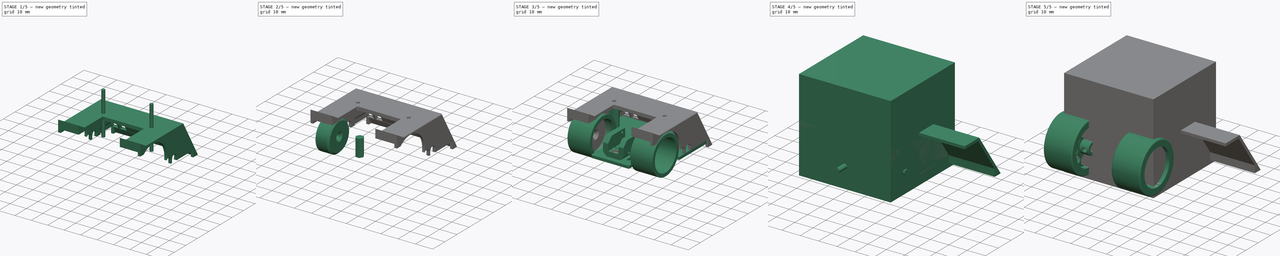
[diagram: build sequence overview — one tinted view per stage of 5, left to right]
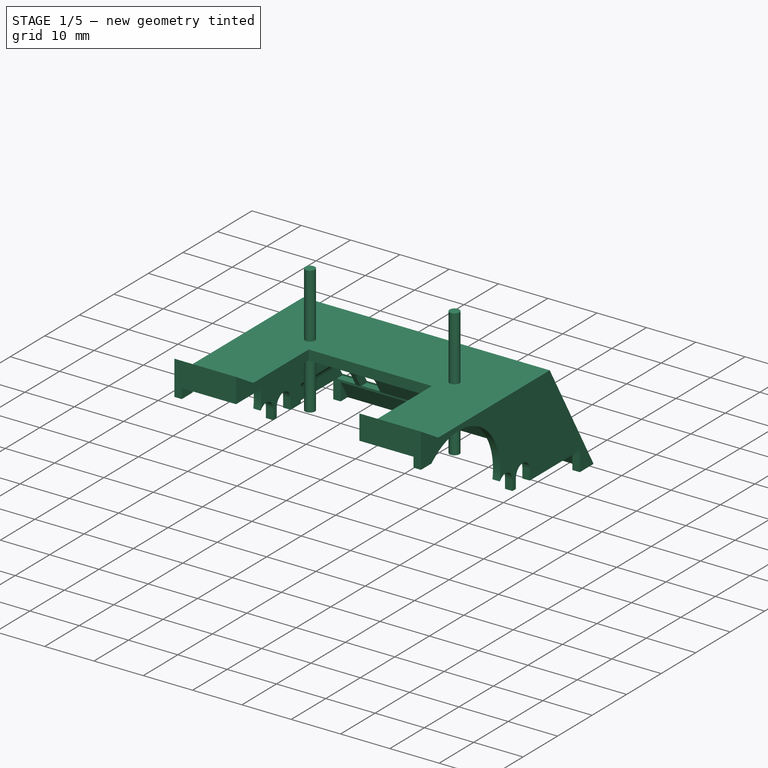
[diagram: stage 1 of 5 — iso view after this stage's code; geometry added in this stage tinted green]
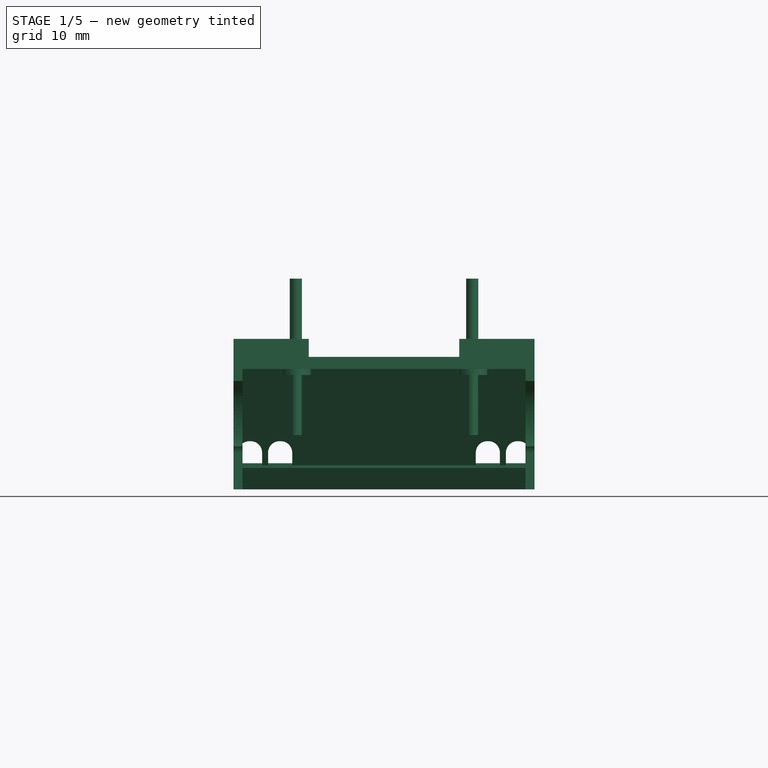
[diagram: stage 1 of 5 — front view after this stage's code; geometry added in this stage tinted green]
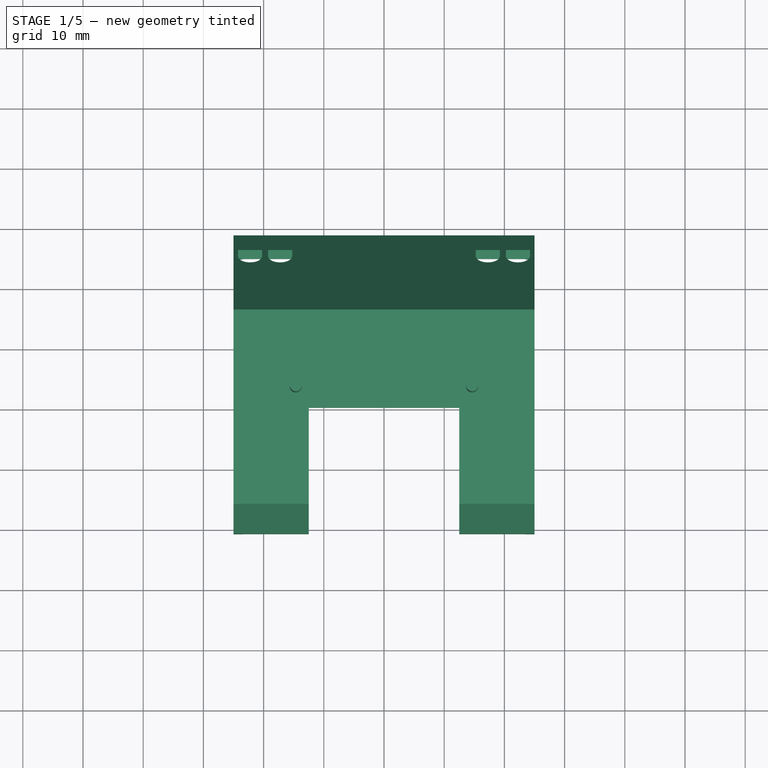
[diagram: stage 1 of 5 — top view after this stage's code; geometry added in this stage tinted green]
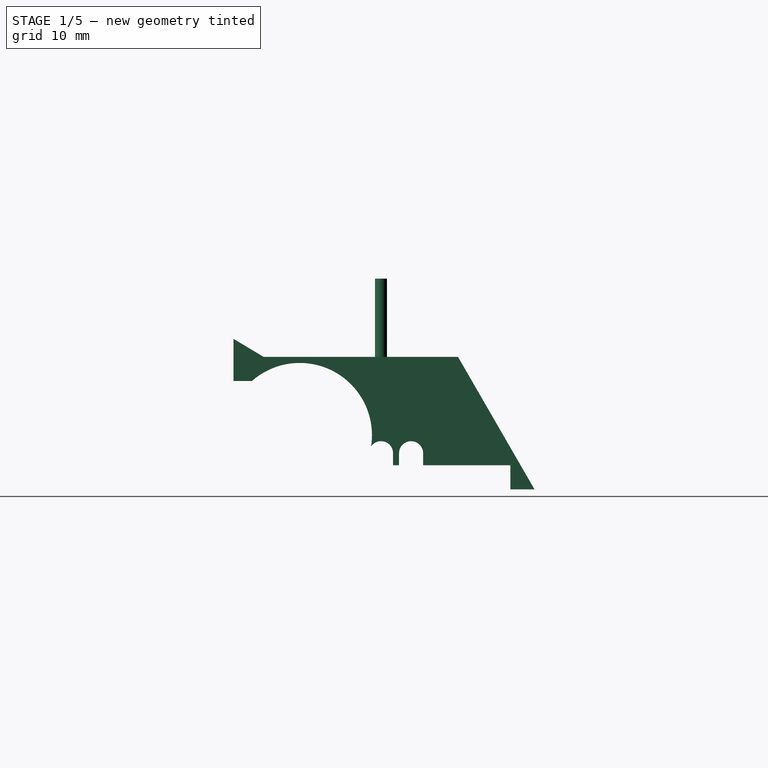
[diagram: stage 1 of 5 — right view after this stage's code; geometry added in this stage tinted green]
FCSTD DOCUMENT  (FreeCAD 0.18.3R)
Label: micropanda
License: All rights reserved
LicenseURL: http://en.wikipedia.org/wiki/All_rights_reserved
objects: Part::Feature×59, App::Part×28, Part::Cylinder×24, Part::Cut×19, Part::MultiFuse×14, Part::Fillet×8, Part::FeaturePython×7, Part::Box×7, PartDesign::Body×7, Sketcher::SketchObject×5, PartDesign::Pad×5, Part::Chamfer×4, Part::Prism×4, Part::Mirroring×4
note: 172 computed .brp shape members not serialized (recipe doc carries the construction recipe); baked Part::Feature solids carry a one-line shape summary decoded from their .brp

FEATURE [Sketcher::SketchObject] Sketch003
  MapMode = 5
  Placement = pos=(0,0,0) rot=(0.57735,0.57735,0.57735;2.0944rad)
  Support = -> [YZ_Plane035]
  sketch-geometry (17):
    g0: LineSegment StartX=35 StartY=-5 StartZ=0 EndX=35 EndY=-9 EndZ=0
    g1: LineSegment StartX=35 StartY=-9 StartZ=0 EndX=39 EndY=-9 EndZ=0
    g2: LineSegment StartX=39 StartY=-9 StartZ=0 EndX=26.8756 EndY=12 EndZ=0
    g3: LineSegment StartX=26.8756 StartY=12 StartZ=0 EndX=-6 EndY=12 EndZ=0
    g4: LineSegment StartX=-11 StartY=16 StartZ=0 EndX=-11 EndY=9 EndZ=0
    g5: LineSegment StartX=20.5 StartY=-5 StartZ=0 EndX=35 EndY=-5 EndZ=0
    g6: ArcOfCircle CenterX=0 CenterY=0 CenterZ=0 NormalX=0 NormalY=0 NormalZ=1 AngleXU=0 Radius=12 StartAngle=6.12728 EndAngle=8.57672
    g7: LineSegment StartX=-7.93725 StartY=9 StartZ=0 EndX=-11 EndY=9 EndZ=0
    g8: ArcOfCircle CenterX=18.5 CenterY=-3 CenterZ=0 NormalX=0 NormalY=0 NormalZ=1 AngleXU=0 Radius=2 StartAngle=0 EndAngle=3.14159
    g9: LineSegment StartX=16.5 StartY=-3 StartZ=0 EndX=16.5 EndY=-5 EndZ=0
    g10: LineSegment StartX=16.5 StartY=-5 StartZ=0 EndX=15.5 EndY=-5 EndZ=0
    g11: LineSegment StartX=15.5 StartY=-5 StartZ=0 EndX=15.5 EndY=-3 EndZ=0
    g12: ArcOfCircle CenterX=13.5 CenterY=-3 CenterZ=0 NormalX=0 NormalY=0 NormalZ=1 AngleXU=0 Radius=2 StartAngle=0 EndAngle=2.53706
    g13: LineSegment StartX=20.5 StartY=-3 StartZ=0 EndX=20.5 EndY=-5 EndZ=0
    g14: LineSegment [constr] StartX=18.5 StartY=-3 StartZ=0 EndX=13.5 EndY=-3 EndZ=0
    g15: LineSegment [constr] StartX=20.5 StartY=-5 StartZ=0 EndX=16.5 EndY=-5 EndZ=0
    g16: LineSegment StartX=-11 StartY=16 StartZ=0 EndX=-6 EndY=12 EndZ=0
  constraints (48):
    c: Coincident(g0,g1)
    c: Coincident(g1,g2)
    c: Coincident(g2,g3)
    c: Coincident(g5,g0)
    c: Vertical(g4)
    c: Horizontal(g3)
    c: Horizontal(g5)
    c: DistanceX(g3,g-1) = 6
    c: Angle(g2,g1) = 1.0472
    c: Horizontal(g1)
    c: DistanceY(g0,g-1) = 9
    c: DistanceY(g-1,g2) = 12
    c: Distance(g1) = 4
    c: Vertical(g0)
    c: DistanceX(g-2,g1) = 39
    c: Distance(g0) = 4
    c: Coincident(g6,g-1)
    c: Coincident(g4,g7)
    c: Horizontal(g7)
    c: Coincident(g7,g6)
    c: Coincident(g9,g10)
    c: Coincident(g10,g11)
    c: Vertical(g9)
    c: Vertical(g11)
    c: Tangent(g11,g12) = -1.5708
    c: DistanceY(g-1,g12) = -3
    c: DistanceX(g-2,g12) = 13.5
    c: Tangent(g8,g9) = -1.5708
    c: Equal(g8,g12)
    c: Vertical(g13)
    c: Coincident(g5,g13)
    c: Tangent(g8,g13) = 1.5708
    c: Coincident(g12,g14)
    c: Coincident(g8,g14)
    c: Horizontal(g14)
    c: Distance(g14) = 5
    c: Distance(g10) = 1
    c: Coincident(g9,g15)
    c: Coincident(g5,g15)
    c: Horizontal(g15)
    c: Radius(g6) = 12
    c: Coincident(g6,g12)
    c: Horizontal(g10)
    c: Coincident(g16,g4)
    c: Coincident(g16,g3)
    c: Distance(g4) = 7
    c: DistanceX(g-2,g4) = -11
    c: DistanceY(g-1,g4) = 16
FEATURE [PartDesign::Pad] Pad003
  Length = 50
  Length2 = 100
  Placement = pos=(0,0,0) rot=(0.57735,0.57735,0.57735;2.0944rad)
  Profile = -> Sketch003
  Refine = true
  Type = 0
FEATURE [PartDesign::Body] Body003
  Group = -> [Sketch003,Pad003]
  Origin = -> Origin035
  Placement = pos=(-25,0,0) rot=(0,0,1;0rad)
  Tip = -> Pad003
FEATURE [Sketcher::SketchObject] Sketch004
  MapMode = 5
  Placement = pos=(0,0,0) rot=(0.57735,0.57735,0.57735;2.0944rad)
  Support = -> [YZ_Plane036]
  sketch-geometry (4):
    g0: LineSegment StartX=-14.2209 StartY=11 StartZ=0 EndX=25.5 EndY=11 EndZ=0
    g1: LineSegment StartX=25.5 StartY=11 StartZ=0 EndX=38.7791 EndY=-12 EndZ=0
    g2: LineSegment StartX=38.7791 StartY=-12 StartZ=0 EndX=-14.2209 EndY=-12 EndZ=0
    g3: LineSegment StartX=-14.2209 StartY=-12 StartZ=0 EndX=-14.2209 EndY=11 EndZ=0
  constraints (12):
    c: Coincident(g0,g1)
    c: Coincident(g1,g2)
    c: Coincident(g2,g3)
    c: Coincident(g3,g0)
    c: Vertical(g3)
    c: Horizontal(g2)
    c: Angle(g0,g1) = 2.0944
    c: Horizontal(g0)
    c: DistanceX(g-2,g0) = 25.5
    c: DistanceY(g-1,g0) = 11
    c: Distance(g3) = 23
    c: Distance(g2) = 53
FEATURE [PartDesign::Pad] Pad004
  Length = 47
  Length2 = 100
  Placement = pos=(0,0,0) rot=(0.57735,0.57735,0.57735;2.0944rad)
  Profile = -> Sketch004
  Refine = true
  Type = 0
FEATURE [PartDesign::Body] Body004
  Group = -> [Sketch004,Pad004]
  Origin = -> Origin036
  Placement = pos=(-23.5,0,0) rot=(0,0,1;0rad)
  Tip = -> Pad004
FEATURE [App::Part] Part001
  Group = -> [Body003,Body004]
  Origin = -> Origin034
FEATURE [Part::Cut] Cut040
  Base = -> Body003
  Refine = true
  Tool = -> Body004
FEATURE [Part::Box] Box006  label="Cube006"
  AttacherType = Attacher::AttachEngine3D
  Height = 50
  Length = 25
  Placement = pos=(-12.5,-12,0) rot=(0,0,1;0rad)
  Width = 22
FEATURE [Part::Cut] Cut041
  Base = -> Cut040
  Refine = true
  Tool = -> Box006
FEATURE [PartDesign::Body] Body005
  Origin = -> Origin037
FEATURE [PartDesign::Body] Body006
  Origin = -> Origin038
  Placement = pos=(0,40.5,0) rot=(0,0,1;0rad)
FEATURE [Part::Box] Box007  label="Cube007"
  AttacherType = Attacher::AttachEngine3D
  Height = 4
  Length = 4
  Placement = pos=(0,49,0) rot=(0,0,1;0rad)
  Width = 13
FEATURE [Part::Fillet] Fillet025
  Base = -> Box007
  Edges = 2 edges r=1.9: [Edge2,Edge6]
  Placement = pos=(20.25,0,-5) rot=(0,0,1;0rad)
FEATURE [Part::Fillet] Fillet026
  Base = -> Box007
  Edges = 2 edges r=1.9: [Edge2,Edge6]
  Placement = pos=(15.25,0,-5) rot=(0,0,1;0rad)
FEATURE [Part::MultiFuse] Fusion041
  Refine = true
  Shapes = -> [Fillet025,Fillet026]
FEATURE [Part::Mirroring] Part__Mirroring003  label="Fusion041 (Mirror #4)"
  Base = (0,0,0)
  Normal = (1,0,0)
  Source = -> Fusion041
FEATURE [Part::MultiFuse] Fusion042
  Placement = pos=(0,-25.5,0) rot=(0,0,1;0rad)
  Refine = true
  Shapes = -> [Fusion041,Part__Mirroring003]
FEATURE [Part::Cut] Cut042
  Base = -> Cut041
  Refine = true
  Tool = -> Fusion042
FEATURE [Part::Cylinder] Cylinder056
  Angle = 360
  AttacherType = Attacher::AttachEngine3D
  Height = 26
  Placement = pos=(14.65,13.5,0) rot=(0,0,1;0rad)
  Radius = 1
FEATURE [Part::Cylinder] Cylinder057
  Angle = 360
  AttacherType = Attacher::AttachEngine3D
  Height = 26
  Placement = pos=(-14.65,13.5,0) rot=(0,0,1;0rad)
  Radius = 1
FEATURE [Part::MultiFuse] Fusion043
  Refine = true
  Shapes = -> [Cylinder057,Cylinder056]
FEATURE [Part::Cylinder] Cylinder058
  Angle = 360
  AttacherType = Attacher::AttachEngine3D
  Height = 2
  Placement = pos=(-14.65,13.5,0) rot=(0,0,1;0rad)
  Radius = 2.5
FEATURE [Part::Cylinder] Cylinder059
  Angle = 360
  AttacherType = Attacher::AttachEngine3D
  Height = 2
  Placement = pos=(14.65,13.5,0) rot=(0,0,1;0rad)
  Radius = 2.5
FEATURE [Part::MultiFuse] Fusion044
  Placement = pos=(0,0,10) rot=(0,0,1;0rad)
  Refine = true
  Shapes = -> [Cylinder058,Cylinder059]
FEATURE [Part::MultiFuse] Fusion045
  Refine = true
  Shapes = -> [Fusion044,Cut042]
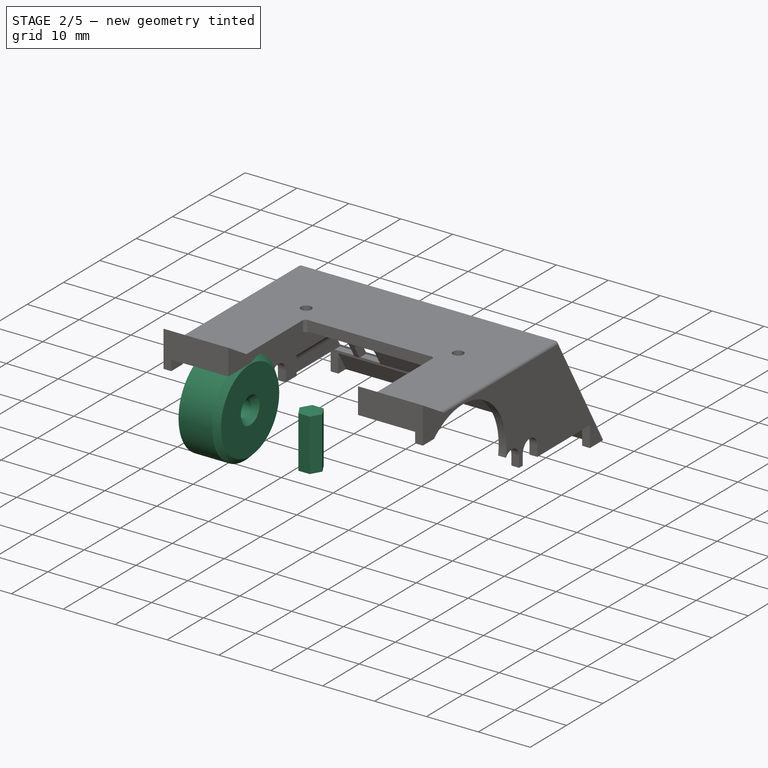
[diagram: stage 2 of 5 — iso view after this stage's code; geometry added in this stage tinted green]
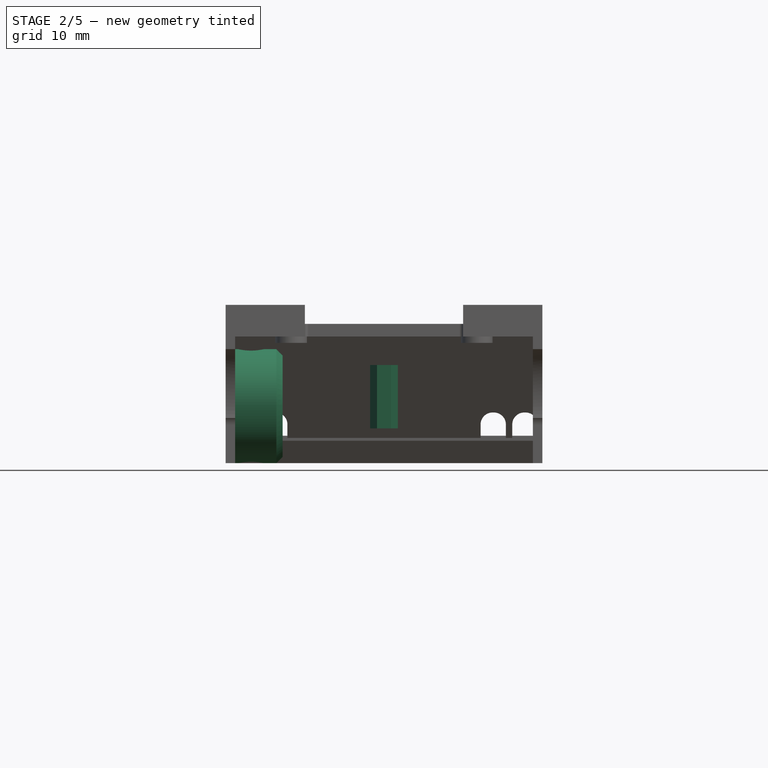
[diagram: stage 2 of 5 — front view after this stage's code; geometry added in this stage tinted green]
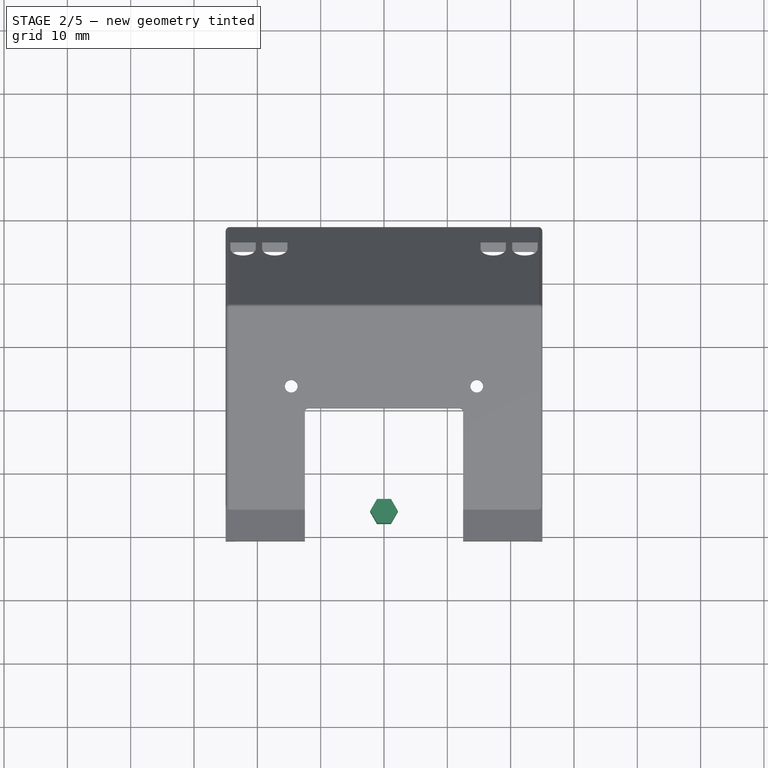
[diagram: stage 2 of 5 — top view after this stage's code; geometry added in this stage tinted green]
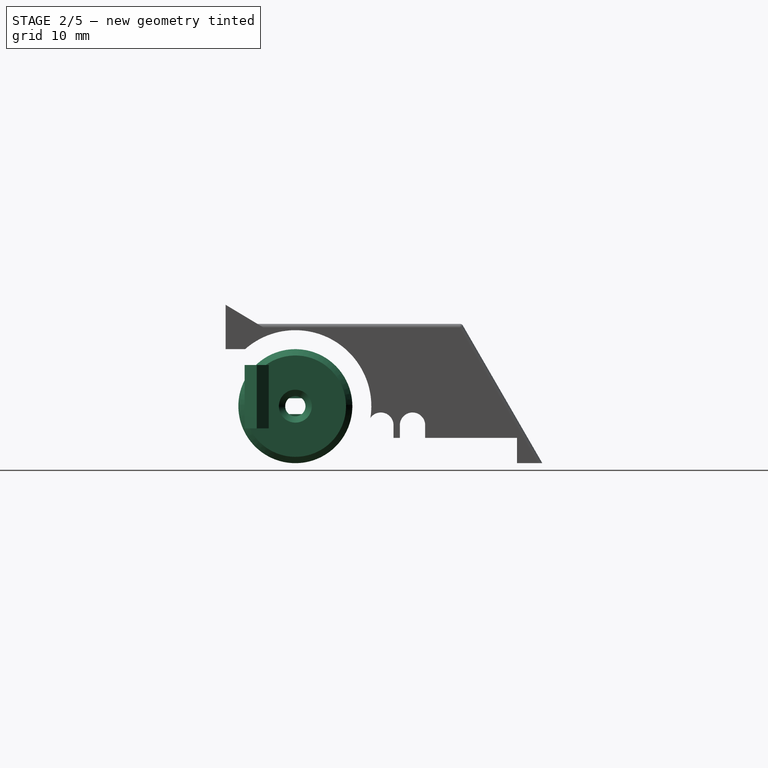
[diagram: stage 2 of 5 — right view after this stage's code; geometry added in this stage tinted green]
FEATURE [Part::Prism] Prism003
  AttacherType = Attacher::AttachEngine3D
  Circumradius = 2.2
  Height = 10
  Placement = pos=(0,-6.1,-3.5) rot=(0,0,1;0rad)
  Polygon = 6
FEATURE [Part::Cylinder] Cylinder052
  Angle = 360
  AttacherType = Attacher::AttachEngine3D
  Height = 7.5
  Radius = 9
FEATURE [Part::Cylinder] Cylinder053
  Angle = 360
  AttacherType = Attacher::AttachEngine3D
  Height = 12
  Placement = pos=(0,0,-1) rot=(0,0,1;0rad)
  Radius = 1.6
FEATURE [Part::Box] Box005  label="Cube005"
  AttacherType = Attacher::AttachEngine3D
  Height = 10
  Length = 10
  Placement = pos=(1.25,-4,3.5) rot=(0,0,1;0rad)
  Width = 10
FEATURE [Part::Mirroring] Part__Mirroring  label="Cube005 (Mirror #1)"
  Base = (0,0,0)
  Normal = (1,0,0)
  Source = -> Box005
FEATURE [Part::MultiFuse] Fusion039
  Refine = true
  Shapes = -> [Box005,Part__Mirroring]
FEATURE [Part::Cut] Cut036
  Base = -> Cylinder053
  Refine = true
  Tool = -> Fusion039
FEATURE [Part::Cut] Cut037
  Base = -> Cylinder052
  Refine = true
  Tool = -> Cut036
FEATURE [Part::Cylinder] Cylinder054
  Angle = 360
  AttacherType = Attacher::AttachEngine3D
  Height = 20
  Placement = pos=(-10,0,5) rot=(0,1,0;1.5708rad)
  Radius = 1
FEATURE [Part::Cut] Cut038
  Base = -> Cut037
  Refine = true
  Tool = -> Cylinder054
FEATURE [Part::Cylinder] Cylinder055
  Angle = 360
  AttacherType = Attacher::AttachEngine3D
  Height = 20
  Placement = pos=(5,0,5) rot=(0,1,0;1.5708rad)
  Radius = 2
FEATURE [Part::Mirroring] Part__Mirroring001  label="Cylinder055 (Mirror #2)"
  Base = (0,0,0)
  Normal = (1,0,0)
  Source = -> Cylinder055
FEATURE [Part::MultiFuse] Fusion040
  Refine = true
  Shapes = -> [Part__Mirroring001,Cylinder055]
FEATURE [Part::Cut] Cut039
  Base = -> Cut038
  Refine = true
  Tool = -> Fusion040
FEATURE [Part::Chamfer] Chamfer064
  Base = -> Cut039
  Edges = 2 edges r=1: [Edge3,Edge10]
FEATURE [Part::FeaturePython] Clone  label="Chamfer065"  # Draft clone (typed FeaturePython)
  AttacherType = Attacher::AttachEngine3D
  Fuse = false
  Objects = -> [Chamfer064]
  Placement = pos=(16,0,0) rot=(0,1,0;1.5708rad)
  Scale = (1,1,1)
FEATURE [Part::Mirroring] Part__Mirroring002  label="Chamfer065 (Mirror #3)"
  Base = (0,0,0)
  Normal = (1,0,0)
  Source = -> Clone
FEATURE [Part::Cut] Cut043
  Base = -> Fusion045
  Refine = true
  Tool = -> Fusion043
FEATURE [Part::Fillet] Fillet027
  Base = -> Cut043
  Edges = 7 edges r=0.6: [Edge53,Edge68,Edge107,Edge108,Edge172,Edge173,Edge201]
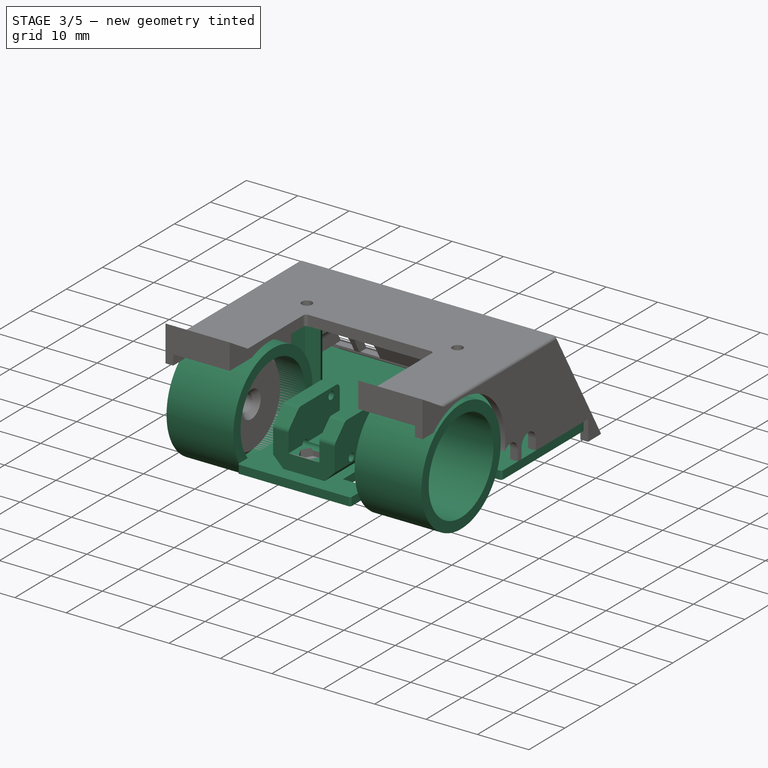
[diagram: stage 3 of 5 — iso view after this stage's code; geometry added in this stage tinted green]
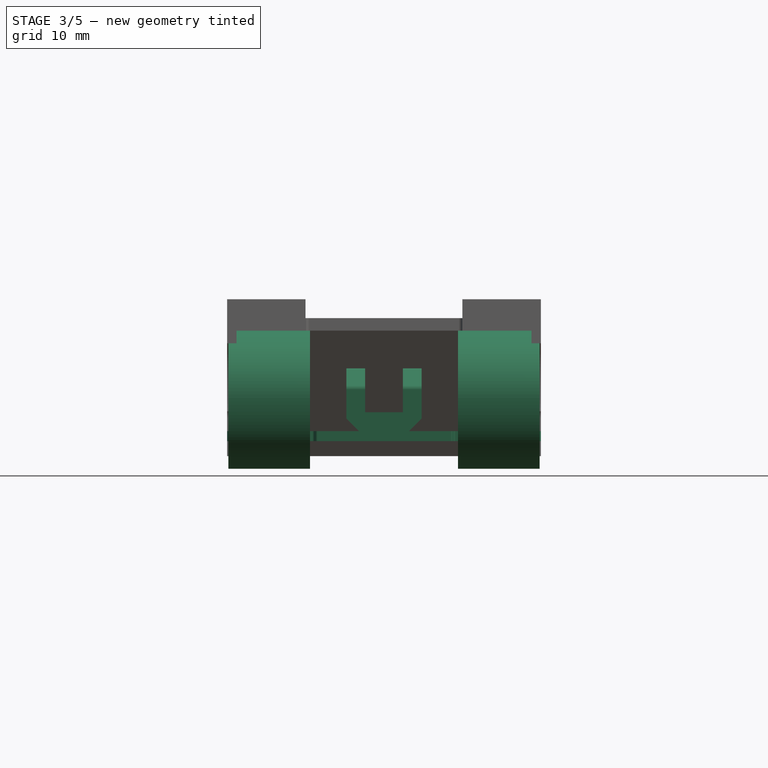
[diagram: stage 3 of 5 — front view after this stage's code; geometry added in this stage tinted green]
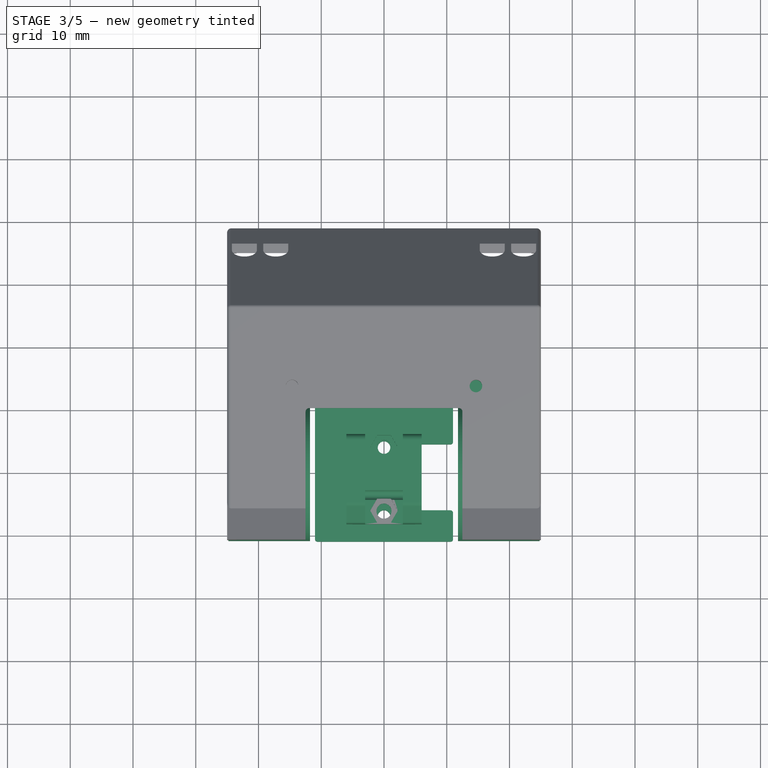
[diagram: stage 3 of 5 — top view after this stage's code; geometry added in this stage tinted green]
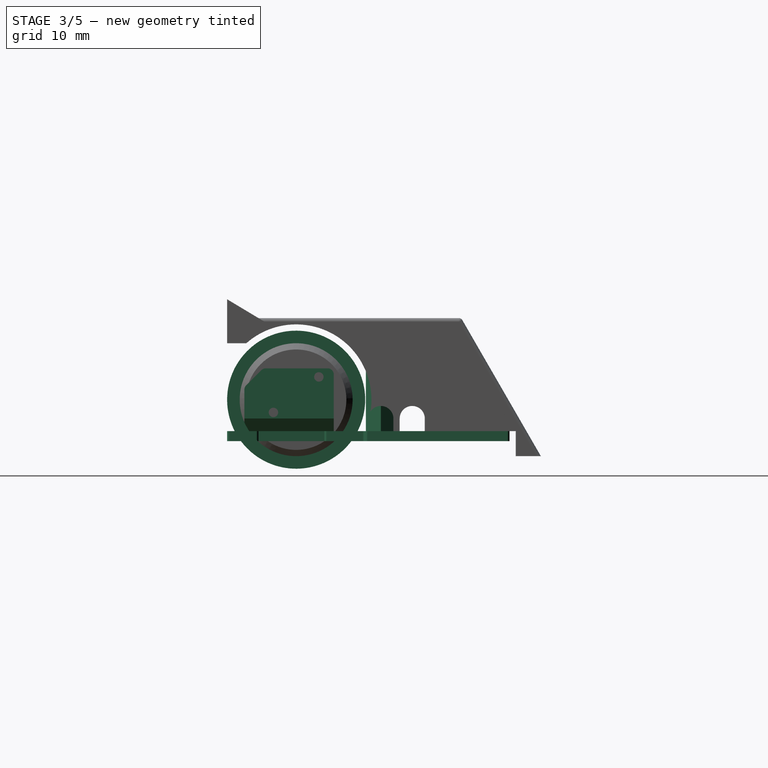
[diagram: stage 3 of 5 — right view after this stage's code; geometry added in this stage tinted green]
FEATURE [Part::Feature] Part__Feature029  label="felga_solarbotics"
  Placement = pos=(-11.8,0,0) rot=(0,-1,0;1.5708rad)
  shape: bbox 13.12 x 20.38 x 20.38 mm, 25 faces (baked)
FEATURE [Part::Feature] Part__Feature030  label="opona solarbotics"
  shape: bbox 28.6 x 28.6 x 12.96 mm, 18 faces (baked)
FEATURE [Sketcher::SketchObject] Sketch
  AttachmentOffset = pos=(0,0,-6.6) rot=(0,0,1;0rad)
  MapMode = 5
  Placement = pos=(0,0,-6.6) rot=(0,0,1;0rad)
  Support = -> [XY_Plane005]
  sketch-geometry (18):
    g0: LineSegment StartX=-25 StartY=11 StartZ=0 EndX=-25 EndY=34 EndZ=0
    g1: LineSegment StartX=25 StartY=34 StartZ=0 EndX=25 EndY=11 EndZ=0
    g2: LineSegment StartX=25 StartY=11 StartZ=0 EndX=11 EndY=11 EndZ=0
    g3: LineSegment StartX=-11 StartY=-11 StartZ=0 EndX=-11 EndY=11 EndZ=0
    g4: LineSegment StartX=-11 StartY=11 StartZ=0 EndX=-25 EndY=11 EndZ=0
    g5: LineSegment [constr] StartX=-11 StartY=11 StartZ=0 EndX=11 EndY=11 EndZ=0
    g6: LineSegment StartX=-11 StartY=-11 StartZ=0 EndX=11 EndY=-11 EndZ=0
    g7: LineSegment StartX=-25 StartY=34 StartZ=0 EndX=25 EndY=34 EndZ=0
    g8: LineSegment [constr] StartX=-11 StartY=11 StartZ=0 EndX=0 EndY=0 EndZ=0
    g9: LineSegment [constr] StartX=0 StartY=0 StartZ=0 EndX=-11 EndY=-11 EndZ=0
    g10: LineSegment StartX=11 StartY=11 StartZ=0 EndX=11 EndY=4.5 EndZ=0
    g11: LineSegment StartX=11 StartY=4.5 StartZ=0 EndX=6 EndY=4.5 EndZ=0
    g12: LineSegment StartX=6 StartY=4.5 StartZ=0 EndX=6 EndY=-6 EndZ=0
    g13: LineSegment StartX=6 StartY=-6 StartZ=0 EndX=11 EndY=-6 EndZ=0
    g14: LineSegment StartX=11 StartY=-6 StartZ=0 EndX=11 EndY=-11 EndZ=0
    g15: LineSegment [constr] StartX=11 StartY=4.5 StartZ=0 EndX=11 EndY=-6 EndZ=0
    g16: Circle CenterX=0 CenterY=-7 CenterZ=0 NormalX=0 NormalY=0 NormalZ=1 AngleXU=0 Radius=1
    g17: Circle CenterX=0 CenterY=4 CenterZ=0 NormalX=0 NormalY=0 NormalZ=1 AngleXU=0 Radius=1
  constraints (50):
    c: Coincident(g1,g2)
    c: Coincident(g3,g4)
    c: Coincident(g4,g0)
    c: Horizontal(g4)
    c: Vertical(g0)
    c: Vertical(g3)
    c: DistanceX(g3,g2) = 22
    c: Horizontal(g5)
    c: Coincident(g2,g5)
    c: Coincident(g3,g5)
    c: Horizontal(g2)
    c: Horizontal(g6)
    c: Equal(g4,g2)
    c: Vertical(g1)
    c: Coincident(g7,g0)
    c: Coincident(g7,g1)
    c: Horizontal(g7)
    c: Distance(g7) = 50
    c: Coincident(g3,g6)
    c: DistanceX(g0,g-1) = 25
    c: DistanceY(g6,g1) = 22
    c: Coincident(g9,g3)
    c: Coincident(g8,g9)
    c: Coincident(g8,g-1)
    c: Coincident(g8,g3)
    c: Equal(g9,g8)
    c: DistanceY(g6,g1) = 45
    c: Vertical(g10)
    c: Coincident(g10,g11)
    c: Horizontal(g11)
    c: Coincident(g11,g12)
    c: Vertical(g12)
    c: Coincident(g12,g13)
    c: Coincident(g13,g14)
    c: Vertical(g14)
    c: Horizontal(g13)
    c: Coincident(g6,g14)
    c: Vertical(g15)
    c: Coincident(g13,g15)
    c: Coincident(g10,g15)
    c: Coincident(g10,g2)
    c: Distance(g13) = 5
    c: Distance(g10) = 6.5
    c: Distance(g12) = 10.5
    c: Equal(g17,g16)
    c: Radius(g17) = 1
    c: PointOnObject(g16,g-2)
    c: PointOnObject(g17,g-2)
    c: Distance(g-1,g17) = 4
    c: Distance(g16,g17) = 11
FEATURE [PartDesign::Pad] Pad
  Length = 1.6
  Length2 = 100
  Profile = -> Sketch
  Refine = true
  Type = 0
FEATURE [Part::Prism] Prism001
  AttacherType = Attacher::AttachEngine3D
  Circumradius = 2.75
  Height = 16
  Placement = pos=(-14.7,13.5,-5) rot=(0,0,1;0rad)
  Polygon = 6
FEATURE [Part::Fillet] Fillet023
  Base = -> Pad
  Edges = 10 edges r=0.4: [Edge1,Edge2,Edge5,Edge8,Edge11,Edge14,Edge17,Edge20,Edge29,Edge32]
FEATURE [Part::Cylinder] Cylinder048
  Angle = 360
  AttacherType = Attacher::AttachEngine3D
  Height = 13
  Radius = 11
FEATURE [Part::Cylinder] Cylinder049
  Angle = 360
  AttacherType = Attacher::AttachEngine3D
  Height = 36
  Placement = pos=(0,0,-2) rot=(0,0,1;0rad)
  Radius = 8.5
FEATURE [Part::Cut] Cut031
  Base = -> Cylinder048
  Placement = pos=(-24.8,0,0) rot=(0,1,0;1.5708rad)
  Refine = true
  Tool = -> Cylinder049
FEATURE [Part::Cut] Cut032
  Base = -> Cylinder048
  Placement = pos=(11.8,0,0) rot=(0,1,0;1.5708rad)
  Refine = true
  Tool = -> Cylinder049
FEATURE [Part::Feature] Part__Feature033  label="SOLID"
  shape: bbox 1.6 x 0.8 x 0.8 mm, 28 faces (baked)
FEATURE [App::Part] C_0603_1608Metric
  Group = -> [Part__Feature033]
  Origin = -> Origin006
  Placement = pos=(227.076,-89.916,1.65) rot=(0,0,1;0rad)
FEATURE [Part::Feature] Part__Feature034  label="SOLID001"
  shape: bbox 1.6 x 0.8 x 0.45 mm, 26 faces (baked)
FEATURE [App::Part] R_0603_1608Metric
  Group = -> [Part__Feature034]
  Origin = -> Origin007
  Placement = pos=(227.076,-88.265,1.65) rot=(0,0,1;0rad)
FEATURE [Part::Feature] Part__Feature035  label="SOLID002"
  shape: bbox 1.6 x 0.8 x 0.45 mm, 26 faces (baked)
FEATURE [App::Part] R_0603_1608Metric001
  Group = -> [Part__Feature035]
  Origin = -> Origin008
  Placement = pos=(227.076,-88.265,1.65) rot=(0,0,1;0rad)
FEATURE [Part::Feature] Part__Feature036  label="SOLID003"
  shape: bbox 1.6 x 0.8 x 0.8 mm, 28 faces (baked)
FEATURE [App::Part] C_0603_1608Metric001
  Group = -> [Part__Feature036]
  Origin = -> Origin009
  Placement = pos=(227.076,-88.265,1.65) rot=(0,0,1;0rad)
FEATURE [Part::Feature] Part__Feature037  label="SOLID004"
  shape: bbox 1.6 x 0.8 x 0.8 mm, 28 faces (baked)
FEATURE [App::Part] C_0603_1608Metric002
  Group = -> [Part__Feature037]
  Origin = -> Origin010
  Placement = pos=(227.076,-95.123,1.65) rot=(0,0,1;0rad)
FEATURE [Part::Feature] Part__Feature038  label="SOLID005"
  shape: bbox 1.6 x 0.8 x 0.8 mm, 28 faces (baked)
FEATURE [App::Part] C_0603_1608Metric003
  Group = -> [Part__Feature038]
  Origin = -> Origin011
  Placement = pos=(209.55,-86.995,1.65) rot=(0,0,1;3.14159rad)
FEATURE [Part::Feature] Part__Feature039  label="SOLID006"
  shape: bbox 1.6 x 0.8 x 0.8 mm, 28 faces (baked)
FEATURE [App::Part] C_0603_1608Metric004
  Group = -> [Part__Feature039]
  Origin = -> Origin012
  Placement = pos=(209.55,-95.123,1.65) rot=(0,0,1;3.14159rad)
FEATURE [Part::Feature] Part__Feature040  label="SOLID007"
  shape: bbox 1.6 x 0.8 x 0.8 mm, 28 faces (baked)
FEATURE [App::Part] C_0603_1608Metric005
  Group = -> [Part__Feature040]
  Origin = -> Origin013
  Placement = pos=(227.076,-97.282,1.65) rot=(0,0,1;0rad)
FEATURE [Part::Feature] Part__Feature041  label="SOLID008"
  shape: bbox 1.6 x 0.8 x 0.8 mm, 28 faces (baked)
FEATURE [App::Part] C_0603_1608Metric006
  Group = -> [Part__Feature041]
  Origin = -> Origin014
  Placement = pos=(227.076,-93.726,1.65) rot=(0,0,1;3.14159rad)
FEATURE [Part::Feature] Part__Feature042  label="SOLID009"
  shape: bbox 1.6 x 0.8 x 0.8 mm, 28 faces (baked)
FEATURE [App::Part] C_0603_1608Metric007
  Group = -> [Part__Feature042]
  Origin = -> Origin015
  Placement = pos=(227.076,-91.313,1.65) rot=(0,0,1;3.14159rad)
FEATURE [Part::Feature] Part__Feature043  label="SOLID010"
  shape: bbox 3.47 x 6.87 x 5.9 mm, 33 faces (baked)
FEATURE [App::Part] LED_D3_0mm_Horizontal_O1_27mm_Z2_0mm_Clear  label="LED_D3.0mm_Horizontal_O1.27mm_Z2.0mm_Clear"
  Group = -> [Part__Feature043]
  Origin = -> Origin016
  Placement = pos=(205.105,-90.805,1.65) rot=(0,0,1;3.14159rad)
FEATURE [Part::Feature] Part__Feature044  label="SOLID011"
  shape: bbox 11.05 x 4.65 x 7 mm, 26 faces (baked)
FEATURE [App::Part] Crystal_HC49_4H_Vertical  label="Crystal_HC49-4H_Vertical"
  Group = -> [Part__Feature044]
  Origin = -> Origin017
  Placement = pos=(232.918,-94.956,1.65) rot=(0,0,1;1.5708rad)
FEATURE [Part::Feature] Part__Feature045  label="SOLID012"
  shape: bbox 3.47 x 6.87 x 5.9 mm, 33 faces (baked)
FEATURE [App::Part] LED_D3_0mm_Horizontal_O1_27mm_Z2_0mm_IRBlack  label="LED_D3.0mm_Horizontal_O1.27mm_Z2.0mm_IRBlack"
  Group = -> [Part__Feature045]
  Origin = -> Origin018
  Placement = pos=(239.395,-106.045,1.65) rot=(0,0,1;1.5708rad)
FEATURE [Part::Feature] Part__Feature046  label="SOLID013"
  shape: bbox 3.47 x 6.87 x 5.9 mm, 33 faces (baked)
FEATURE [App::Part] LED_D3_0mm_Horizontal_O1_27mm_Z2_0mm_IRBlack001  label="LED_D3.0mm_Horizontal_O1.27mm_Z2.0mm_IRBlack001"
  Group = -> [Part__Feature046]
  Origin = -> Origin019
  Placement = pos=(200.025,-90.805,1.65) rot=(0,0,1;3.14159rad)
FEATURE [Part::Feature] Part__Feature047  label="SOLID014"
  shape: bbox 3.47 x 6.87 x 5.9 mm, 33 faces (baked)
FEATURE [App::Part] LED_D3_0mm_Horizontal_O1_27mm_Z2_0mm_IRBlack002  label="LED_D3.0mm_Horizontal_O1.27mm_Z2.0mm_IRBlack002"
  Group = -> [Part__Feature047]
  Origin = -> Origin020
  Placement = pos=(200.025,-90.805,1.65) rot=(0,0,1;3.14159rad)
FEATURE [Part::Feature] Part__Feature048  label="SOLID015"
  shape: bbox 3.47 x 6.87 x 5.9 mm, 33 faces (baked)
FEATURE [App::Part] LED_D3_0mm_Horizontal_O1_27mm_Z2_0mm_IRBlack003  label="LED_D3.0mm_Horizontal_O1.27mm_Z2.0mm_IRBlack003"
  Group = -> [Part__Feature048]
  Origin = -> Origin021
  Placement = pos=(244.475,-90.805,1.65) rot=(0,0,1;3.14159rad)
FEATURE [Part::Feature] Part__Feature049  label="SOLID016"
  shape: bbox 3.47 x 6.87 x 5.9 mm, 33 faces (baked)
FEATURE [App::Part] LED_D3_0mm_Horizontal_O1_27mm_Z2_0mm_IRBlack004  label="LED_D3.0mm_Horizontal_O1.27mm_Z2.0mm_IRBlack004"
  Group = -> [Part__Feature049]
  Origin = -> Origin022
  Placement = pos=(244.475,-90.805,1.65) rot=(0,0,1;3.14159rad)
FEATURE [Part::Feature] Part__Feature050  label="SOLID017"
  shape: bbox 3.47 x 6.87 x 5.9 mm, 33 faces (baked)
FEATURE [App::Part] LED_D3_0mm_Horizontal_O1_27mm_Z2_0mm_IRBlack005  label="LED_D3.0mm_Horizontal_O1.27mm_Z2.0mm_IRBlack005"
  Group = -> [Part__Feature050]
  Origin = -> Origin023
  Placement = pos=(202.565,-103.505,1.65) rot=(0,0,-1;1.5708rad)
FEATURE [Part::Feature] Part__Feature051  label="SOLID018"
  shape: bbox 3.47 x 6.87 x 5.9 mm, 33 faces (baked)
FEATURE [App::Part] LED_D3_0mm_Horizontal_O1_27mm_Z2_0mm_Clear001  label="LED_D3.0mm_Horizontal_O1.27mm_Z2.0mm_Clear001"
  Group = -> [Part__Feature051]
  Origin = -> Origin024
  Placement = pos=(239.395,-100.965,1.65) rot=(0,0,1;1.5708rad)
FEATURE [Part::Feature] Part__Feature052  label="SOLID019"
  shape: bbox 3.47 x 6.87 x 5.9 mm, 33 faces (baked)
FEATURE [App::Part] LED_D3_0mm_Horizontal_O1_27mm_Z2_0mm_Clear002  label="LED_D3.0mm_Horizontal_O1.27mm_Z2.0mm_Clear002"
  Group = -> [Part__Feature052]
  Origin = -> Origin025
  Placement = pos=(239.395,-90.805,1.65) rot=(0,0,1;3.14159rad)
FEATURE [Part::Feature] Part__Feature053  label="SOLID020"
  shape: bbox 3.47 x 6.87 x 5.9 mm, 33 faces (baked)
FEATURE [App::Part] LED_D3_0mm_Horizontal_O1_27mm_Z2_0mm_Clear003  label="LED_D3.0mm_Horizontal_O1.27mm_Z2.0mm_Clear003"
  Group = -> [Part__Feature053]
  Origin = -> Origin026
  Placement = pos=(202.565,-98.425,1.65) rot=(0,0,-1;1.5708rad)
FEATURE [Part::Feature] Part__Feature054  label="SOLID021"
  shape: bbox 3.2 x 1.6 x 1.6 mm, 28 faces (baked)
FEATURE [App::Part] C_1206_3216Metric
  Group = -> [Part__Feature054]
  Origin = -> Origin027
  Placement = pos=(227.33,-100.33,-0.05) rot=(0.707107,0.707107,0;3.14159rad)
FEATURE [Part::Feature] Part__Feature055  label="SOLID022"
  shape: bbox 9.32 x 9.32 x 1.6 mm, 761 faces (baked)
FEATURE [App::Part] LQFP_48_1EP_7x7mm_P0_5mm_EP3_6x3_6mm  label="LQFP-48-1EP_7x7mm_P0.5mm_EP3.6x3.6mm"
  Group = -> [Part__Feature055]
  Origin = -> Origin028
  Placement = pos=(218.186,-91.948,1.65) rot=(0,0,1;3.14159rad)
FEATURE [Part::Feature] Part__Feature056  label="SOLID023"
  shape: bbox 4 x 2.5 x 1.59 mm, 242 faces (baked)
FEATURE [App::Part] SW_SPST_B3U_1000P  label="SW_SPST_B3U-1000P"
  Group = -> [Part__Feature056]
  Origin = -> Origin029
  Placement = pos=(213.36,-126.365,1.65) rot=(0,0,1;0rad)
FEATURE [Part::Feature] Part__Feature057  label="SOLID024"
  shape: bbox 4 x 2.5 x 1.59 mm, 242 faces (baked)
FEATURE [App::Part] SW_SPST_B3U_1000P001  label="SW_SPST_B3U-1000P001"
  Group = -> [Part__Feature057]
  Origin = -> Origin030
  Placement = pos=(228.6,-126.365,1.65) rot=(0,0,1;0rad)
FEATURE [Part::Feature] Part__Feature058  label="COMPOUND"
  shape: bbox 50 x 45 x 1.6 mm, 61 faces (baked)
FEATURE [App::Part] Open_CASCADE_STEP_translator_6_9_1  label="Open CASCADE STEP translator 6.9 1"
  Group = -> [C_0603_1608Metric,R_0603_1608Metric,R_0603_1608Metric001,C_0603_1608Metric001,C_0603_1608Metric002,C_0603_1608Metric003,C_0603_1608Metric004,C_0603_1608Metric005,C_0603_1608Metric006,C_0603_1608Metric007,LED_D3_0mm_Horizontal_O1_27mm_Z2_0mm_Clear,Crystal_HC49_4H_Vertical,LED_D3_0mm_Horizontal_O1_27mm_Z2_0mm_IRBlack,LED_D3_0mm_Horizontal_O1_27mm_Z2_0mm_IRBlack001,+12 more]
  Origin = -> Origin031
  Placement = pos=(-221,118.25,-6.5) rot=(0,0,1;0rad)
FEATURE [Sketcher::SketchObject] Sketch002
  MapMode = 5
  Support = -> [XY_Plane033]
  sketch-geometry (6):
    g0: LineSegment StartX=-6 StartY=6 StartZ=0 EndX=6 EndY=6 EndZ=0
    g1: LineSegment StartX=6 StartY=6 StartZ=0 EndX=6 EndY=-8.25 EndZ=0
    g2: LineSegment StartX=6 StartY=-8.25 StartZ=0 EndX=-6 EndY=-8.25 EndZ=0
    g3: LineSegment StartX=-6 StartY=-8.25 StartZ=0 EndX=-6 EndY=6 EndZ=0
    g4: Circle CenterX=0 CenterY=4 CenterZ=0 NormalX=0 NormalY=0 NormalZ=1 AngleXU=0 Radius=1.2
    g5: Circle CenterX=0 CenterY=-6.15 CenterZ=0 NormalX=0 NormalY=0 NormalZ=1 AngleXU=0 Radius=1.2
  constraints (17):
    c: Coincident(g0,g1)
    c: Coincident(g1,g2)
    c: Coincident(g2,g3)
    c: Coincident(g3,g0)
    c: Horizontal(g2)
    c: Vertical(g1)
    c: Vertical(g3)
    c: Distance(g0) = 12
    c: DistanceY(g-1,g0) = 6
    c: Symmetric(g0,g0,g-2)
    c: Distance(g3) = 14.25
    c: PointOnObject(g5,g-2)
    c: PointOnObject(g4,g-2)
    c: Radius(g4) = 1.2
    c: Equal(g4,g5)
    c: Distance(g4,g5) = 10.15
    c: DistanceY(g4,g0) = 2
FEATURE [PartDesign::Pad] Pad002
  Length = 10
  Length2 = 100
  Profile = -> Sketch002
  Refine = true
  Type = 0
FEATURE [PartDesign::Body] Body002
  Group = -> [Sketch002,Pad002]
  Origin = -> Origin033
  Placement = pos=(0,0,-5) rot=(0,0,1;0rad)
  Tip = -> Pad002
FEATURE [App::Part] Part
  Group = -> [Body002]
  Origin = -> Origin032
FEATURE [Part::Box] Box004  label="Cube004"
  AttacherType = Attacher::AttachEngine3D
  Height = 10
  Length = 6
  Placement = pos=(-3,-11,-2) rot=(0,0,1;0rad)
  Width = 20
FEATURE [Part::Cut] Cut033
  Base = -> Body002
  Refine = true
  Tool = -> Box004
FEATURE [Part::Chamfer] Chamfer
  Base = -> Cut033
  Edges = 2 edges r=3: [Edge17,Edge27]
FEATURE [Part::Cylinder] Cylinder050
  Angle = 360
  AttacherType = Attacher::AttachEngine3D
  Height = 25
  Placement = pos=(-13,-3.62,-2.83) rot=(0.309575,0.89907,0.309575;1.67691rad)
  Radius = 0.75
FEATURE [Part::Cylinder] Cylinder051
  Angle = 360
  AttacherType = Attacher::AttachEngine3D
  Height = 25
  Placement = pos=(-13,3.62,2.83) rot=(0.309575,0.89907,0.309575;1.67691rad)
  Radius = 0.75
FEATURE [Part::MultiFuse] Fusion037
  Placement = pos=(0,0,0.8) rot=(0,0,1;0rad)
  Refine = true
  Shapes = -> [Cylinder050,Cylinder051]
FEATURE [Part::Cut] Cut034
  Base = -> Chamfer
  Refine = true
  Tool = -> Fusion037
FEATURE [Part::Fillet] Fillet024
  Base = -> Cut034
  Edges = 6 edges r=1: [Edge9,Edge13,Edge15,Edge22,Edge26,Edge40]
FEATURE [Part::Chamfer] Chamfer063
  Base = -> Fillet024
  Edges = 2 edges r=2: [Edge3,Edge21]
FEATURE [Part::Prism] Prism002
  AttacherType = Attacher::AttachEngine3D
  Circumradius = 2.2
  Height = 10
  Placement = pos=(0,4,-3.5) rot=(0,0,1;0rad)
  Polygon = 6
FEATURE [Part::MultiFuse] Fusion038
  Refine = true
  Shapes = -> [Prism002,Prism003]
FEATURE [Part::Cut] Cut035
  Base = -> Chamfer063
  Refine = true
  Tool = -> Fusion038
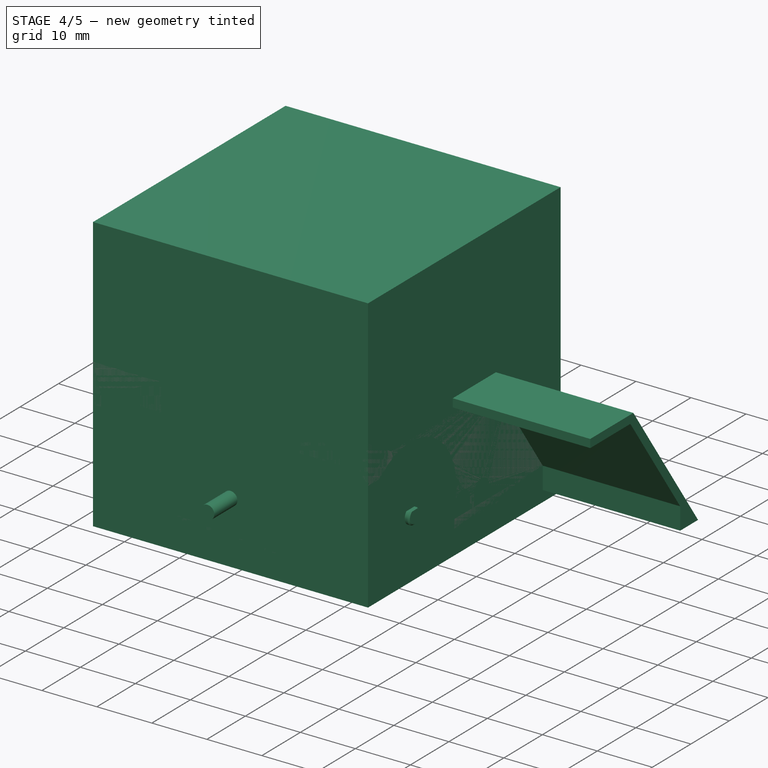
[diagram: stage 4 of 5 — iso view after this stage's code; geometry added in this stage tinted green]
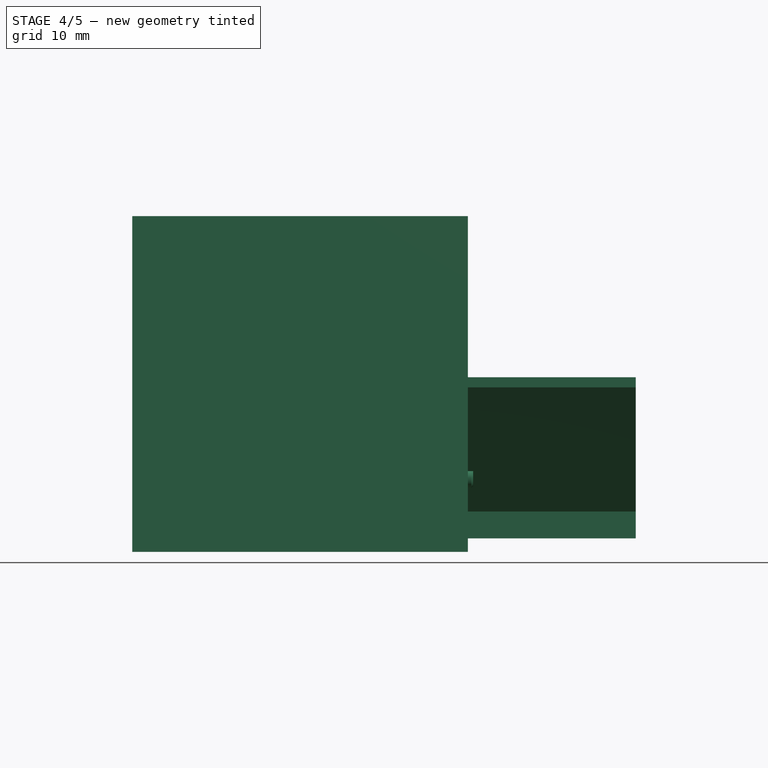
[diagram: stage 4 of 5 — front view after this stage's code; geometry added in this stage tinted green]
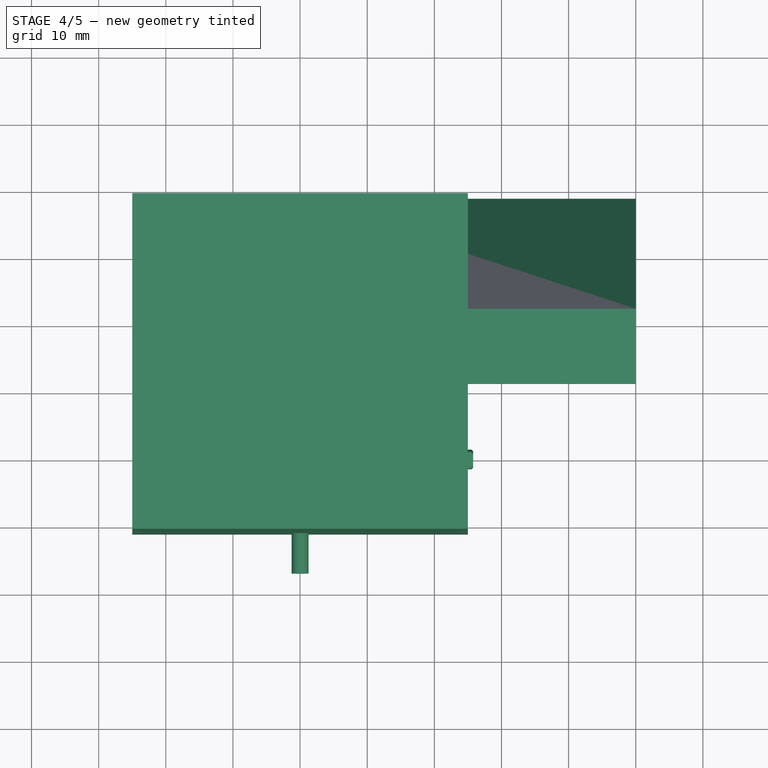
[diagram: stage 4 of 5 — top view after this stage's code; geometry added in this stage tinted green]
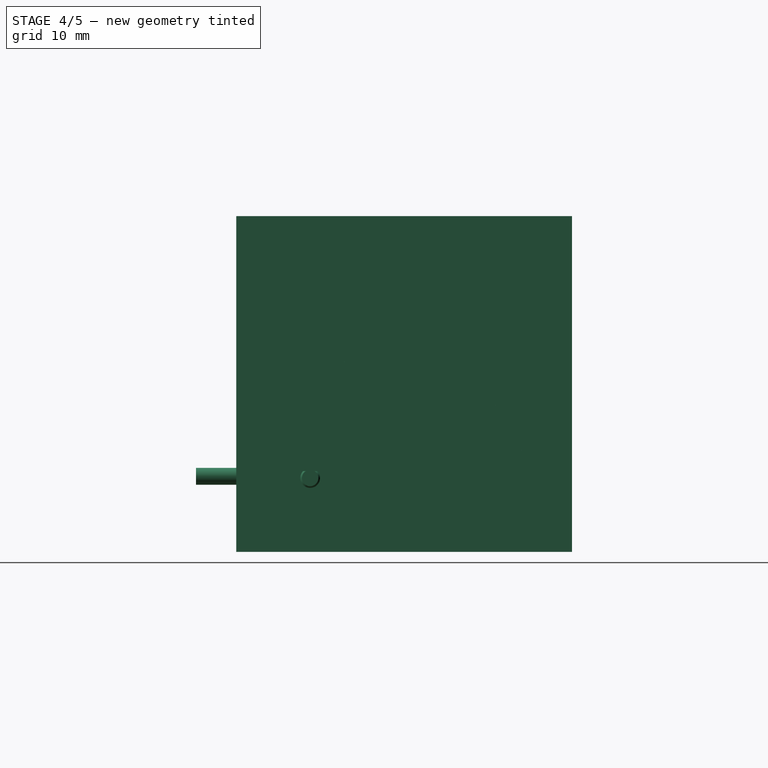
[diagram: stage 4 of 5 — right view after this stage's code; geometry added in this stage tinted green]
FEATURE [Part::Feature] Part__Feature005  label="Pololu - 1_250 Micro gear motor005"
  shape: bbox 3 x 3 x 2 mm, 6 faces (baked)
FEATURE [Part::Feature] Part__Feature006  label="Pololu - 1_250 Micro gear motor006"
  shape: bbox 3 x 3 x 4 mm, 6 faces (baked)
FEATURE [Part::Feature] Part__Feature004  label="Pololu - 1_250 Micro gear motor004"
  shape: bbox 3 x 3 x 2 mm, 6 faces (baked)
FEATURE [Part::Feature] Part__Feature003  label="Pololu - 1_250 Micro gear motor003"
  shape: bbox 2 x 2 x 3 mm, 6 faces (baked)
FEATURE [Part::Feature] Part__Feature002  label="Pololu - 1_250 Micro gear motor002"
  shape: bbox 1 x 1 x 8 mm, 7 faces (baked)
FEATURE [Part::Feature] Part__Feature  label="Pololu - 1_250 Micro gear motor"
  shape: bbox 12 x 10 x 1 mm, 20 faces (baked)
FEATURE [Part::Feature] Part__Feature001  label="Pololu - 1_250 Micro gear motor001"
  shape: bbox 1 x 1 x 8 mm, 7 faces (baked)
FEATURE [Part::Feature] Part__Feature007  label="Pololu - 1_250 Micro gear motor007"
  shape: bbox 3 x 3 x 4 mm, 6 faces (baked)
FEATURE [Part::Feature] Part__Feature008  label="Pololu - 1_250 Micro gear motor008"
  shape: bbox 2 x 2 x 1.5 mm, 6 faces (baked)
FEATURE [Part::Feature] Part__Feature009  label="Pololu - 1_250 Micro gear motor009"
  shape: bbox 5.5 x 5.5 x 0.75 mm, 6 faces (baked)
FEATURE [Part::Feature] Part__Feature010  label="Pololu - 1_250 Micro gear motor010"
  shape: bbox 12 x 10 x 1 mm, 22 faces (baked)
FEATURE [Part::Feature] Part__Feature011  label="Pololu - 1_250 Micro gear motor011"
  shape: bbox 5.5 x 5.5 x 1 mm, 6 faces (baked)
FEATURE [Part::Feature] Part__Feature012  label="Pololu - 1_250 Micro gear motor012"
  shape: bbox 5.5 x 5.5 x 0.75 mm, 6 faces (baked)
FEATURE [Part::Feature] Part__Feature013  label="Pololu - 1_250 Micro gear motor013"
  shape: bbox 2 x 2 x 1.15 mm, 6 faces (baked)
FEATURE [Part::Feature] Part__Feature014  label="Pololu - 1_250 Micro gear motor014"
  shape: bbox 5.5 x 5.5 x 1 mm, 6 faces (baked)
FEATURE [Part::Feature] Part__Feature015  label="Pololu - 1_250 Micro gear motor015"
  shape: bbox 2 x 2 x 1.3 mm, 6 faces (baked)
FEATURE [Part::Feature] Part__Feature016  label="Pololu - 1_250 Micro gear motor016"
  shape: bbox 2.94 x 2.94 x 18.27 mm, 12 faces (baked)
FEATURE [Part::Feature] Part__Feature017  label="Pololu - 1_250 Micro gear motor017"
  shape: bbox 12 x 10 x 1.6 mm, 37 faces (baked)
FEATURE [Part::Feature] Part__Feature018  label="Pololu - 1_250 Micro gear motor018"
  shape: bbox 12 x 10 x 14 mm, 11 faces (baked)
FEATURE [Part::Feature] Part__Feature019  label="Pololu - 1_250 Micro gear motor019"
  shape: bbox 12 x 10 x 2.5 mm, 14 faces (baked)
FEATURE [Part::Feature] Part__Feature020  label="Pololu - 1_250 Micro gear motor020"
  shape: bbox 0.3 x 1.5 x 2 mm, 8 faces (baked)
FEATURE [Part::Feature] Part__Feature021  label="Pololu - 1_250 Micro gear motor021"
  shape: bbox 0.3 x 1.5 x 2 mm, 8 faces (baked)
FEATURE [Part::Feature] Part__Feature022  label="Pololu - 1_250 Micro gear motor022"
  shape: bbox 2.65 x 2.65 x 8.95 mm, 21 faces (baked)
FEATURE [Part::Feature] Part__Feature023  label="Pololu - 1_250 Micro gear motor023"
  shape: bbox 2.65 x 2.65 x 8.95 mm, 21 faces (baked)
FEATURE [Part::MultiFuse] Fusion  label="motor-src"
  Refine = true
  Shapes = -> [Part__Feature,Part__Feature001,Part__Feature002,Part__Feature003,Part__Feature004,Part__Feature005,Part__Feature006,Part__Feature007,Part__Feature008,Part__Feature009,Part__Feature010,Part__Feature011,Part__Feature012,Part__Feature013,Part__Feature014,Part__Feature015,Part__Feature016,Part__Feature017,Part__Feature018,Part__Feature019,Part__Feature020,Part__Feature021,Part__Feature022,+1 more]
FEATURE [Part::Cylinder] Cylinder039
  Angle = 360
  AttacherType = Attacher::AttachEngine3D
  Height = 30
  Placement = pos=(7,0,-10) rot=(0,0,1;0rad)
  Radius = 2.25
FEATURE [Part::Cylinder] Cylinder043
  Angle = 360
  AttacherType = Attacher::AttachEngine3D
  Height = 5.5
  Placement = pos=(0,0,-2) rot=(0,0,1;0rad)
  Radius = 3.5
FEATURE [Part::Cylinder] Cylinder044
  Angle = 360
  AttacherType = Attacher::AttachEngine3D
  Height = 5.5
  Placement = pos=(0,0,3.5) rot=(0,0,1;0rad)
  Radius = 2
FEATURE [Part::Cylinder] Cylinder045
  Angle = 360
  AttacherType = Attacher::AttachEngine3D
  Height = 32
  Placement = pos=(0,15,0.25) rot=(1,0,0;1.5708rad)
  Radius = 1.25
FEATURE [Part::FeaturePython] Array002  # Draft array (typed FeaturePython)
  Angle = 360
  ArrayType = 1
  Axis = (0,0,1)
  Base = -> Cylinder039
  Center = (0,0,0)
  Fuse = false
  IntervalAxis = (0,0,0)
  IntervalX = (1,0,0)
  IntervalY = (0,1,0)
  IntervalZ = (0,0,0)
  NumberPolar = 8
  NumberX = 2
  NumberY = 2
  NumberZ = 1
FEATURE [Part::Box] Box  label="Cube"
  AttacherType = Attacher::AttachEngine3D
  Height = 50
  Length = 50
  Placement = pos=(-25,-11,-11) rot=(0,0,1;0rad)
  Width = 50
FEATURE [Part::FeaturePython] Clone050  label="motor002"  # Draft clone (typed FeaturePython)
  Objects = -> [Fusion]
  Placement = pos=(0,0,0) rot=(0.57735,0.57735,0.57735;2.0944rad)
  Scale = (1,1,1)
FEATURE [Part::Feature] Part__Feature024  label="Pololu - 1_250 Micro gear motor024"
  shape: bbox 12 x 10 x 14 mm, 11 faces (baked)
FEATURE [Part::Feature] Part__Feature025  label="Pololu - 1_250 Micro gear motor025"
  shape: bbox 12 x 10 x 2.5 mm, 14 faces (baked)
FEATURE [Part::Feature] Part__Feature026  label="Pololu - 1_250 Micro gear motor026"
  shape: bbox 0.3 x 1.5 x 2 mm, 8 faces (baked)
FEATURE [Part::Feature] Part__Feature027  label="Pololu - 1_250 Micro gear motor027"
  shape: bbox 0.3 x 1.5 x 2 mm, 8 faces (baked)
FEATURE [Part::Box] Box001  label="Cube001"
  AttacherType = Attacher::AttachEngine3D
  Height = 4
  Length = 24
  Placement = pos=(-6,-5,7.5) rot=(0,0,1;0rad)
  Width = 10
FEATURE [Part::Feature] Part__Feature028  label="Pololu - 1_250 Micro gear motor028"
  Placement = pos=(12,0,-5) rot=(0,0,1;0rad)
  shape: bbox 2.94 x 2.94 x 18.27 mm, 12 faces (baked)
FEATURE [Part::MultiFuse] Fusion036
  Placement = pos=(1,12,6) rot=(0.57735,-0.57735,-0.57735;2.0944rad)
  Refine = true
  Shapes = -> [Part__Feature024,Box001,Part__Feature025,Part__Feature027,Part__Feature026,Part__Feature028]
FEATURE [PartDesign::Body] Body
  Group = -> [Sketch,Pad]
  Origin = -> Origin005
  Tip = -> Pad
FEATURE [Part::Cylinder] Cylinder
  Angle = 360
  AttacherType = Attacher::AttachEngine3D
  Height = 25
  Placement = pos=(-18,-3.89942,2.87038) rot=(0.686209,-0.241316,0.686209;3.61517rad)
  Radius = 1
FEATURE [Part::Cylinder] Cylinder046
  Angle = 360
  AttacherType = Attacher::AttachEngine3D
  Height = 25
  Placement = pos=(-18,3.89942,9.12962) rot=(0.314875,0.895382,0.314875;1.68108rad)
  Radius = 1
FEATURE [Part::Cut] Cut
  Base = -> Fusion036
  Refine = true
  Tool = -> Cylinder046
FEATURE [Part::Cut] Cut030
  Base = -> Cut
  Refine = true
  Tool = -> Cylinder
FEATURE [Part::Fillet] Fillet
  Base = -> Cut030
  Edges = 4 edges r=1: [Edge20,Edge22,Edge27,Edge31]
  Placement = pos=(0,0,-6) rot=(0,0,1;0rad)
FEATURE [Part::Fillet] Fillet014
  Base = -> Cut030
  Edges = 4 edges r=1: [Edge20,Edge22,Edge27,Edge31]
  Placement = pos=(0,-5.85778,1.29864) rot=(0,0.779884,0.625923;3.14159rad)
FEATURE [Part::Feature] Part__Feature031  label="felga_solarbotics001"
  Placement = pos=(11.8,0,0) rot=(0,1,0;1.5708rad)
  shape: bbox 13.12 x 20.38 x 20.38 mm, 25 faces (baked)
FEATURE [Sketcher::SketchObject] Sketch001
  MapMode = 5
  Placement = pos=(0,0,0) rot=(0.57735,0.57735,0.57735;2.0944rad)
  Support = -> [YZ_Plane]
  sketch-geometry (8):
    g0: LineSegment StartX=34.368 StartY=-9 StartZ=0 EndX=39 EndY=-9 EndZ=0
    g1: LineSegment StartX=22.195 StartY=15 StartZ=0 EndX=11 EndY=15 EndZ=0
    g2: LineSegment StartX=11 StartY=15 StartZ=0 EndX=11 EndY=13.5 EndZ=0
    g3: LineSegment StartX=22.195 StartY=15 StartZ=0 EndX=39 EndY=-9 EndZ=0
    g4: LineSegment StartX=11 StartY=13.5 StartZ=0 EndX=21.4142 EndY=13.5 EndZ=0
    g5: LineSegment StartX=21.4142 StartY=13.5 StartZ=0 EndX=34.368 EndY=-5 EndZ=0
    g6: LineSegment StartX=34.368 StartY=-5 StartZ=0 EndX=34.368 EndY=-9 EndZ=0
    g7: LineSegment [constr] StartX=21.4142 StartY=13.5 StartZ=0 EndX=22.6429 EndY=14.3604 EndZ=0
  constraints (24):
    c: Horizontal(g0)
    c: Horizontal(g1)
    c: Vertical(g2)
    c: Coincident(g1,g2)
    c: DistanceY(g0,g-1) = 9
    c: Coincident(g0,g3)
    c: Coincident(g1,g3)
    c: DistanceX(g1,g0) = 28
    c: DistanceX(g-1,g1) = 11
    c: Coincident(g2,g4)
    c: Horizontal(g4)
    c: Coincident(g4,g5)
    c: Coincident(g5,g6)
    c: Vertical(g6)
    c: Coincident(g0,g6)
    c: Coincident(g7,g4)
    c: PointOnObject(g7,g3)
    c: Perpendicular(g7,g3)
    c: Distance(g7) = 1.5
    c: Parallel(g5,g3)
    c: Equal(g7,g2)
    c: Angle(g3,g-1) = 0.959931
    c: Distance(g6) = 4
    c: DistanceY(g-1,g1) = 15
FEATURE [Part::Feature] Part__Feature032  label="pololu-xv-step-up-voltage-regulator-u3v12fx"
  Placement = pos=(-4,-8.25,-4.9) rot=(1,0,0;1.5708rad)
  shape: bbox 8.13 x 2.818 x 13.08 mm, 617 faces (baked)
FEATURE [PartDesign::Pad] Pad001
  Length = 50
  Length2 = 100
  Placement = pos=(0,0,0) rot=(0.57735,0.57735,0.57735;2.0944rad)
  Profile = -> Sketch001
  Refine = true
  Type = 0
FEATURE [PartDesign::Body] Body001  label="cubierta"
  Group = -> [Sketch001,Pad001]
  Origin = -> Origin
  Placement = pos=(-25,0,0) rot=(0,0,1;0rad)
  Tip = -> Pad001
FEATURE [Part::Box] Box003  label="Cube003"
  AttacherType = Attacher::AttachEngine3D
  Height = 12
  Length = 48
  Placement = pos=(-24,22,-1) rot=(1,0,0;0.610865rad)
  Width = 8
FEATURE [Part::Prism] Prism
  AttacherType = Attacher::AttachEngine3D
  Circumradius = 2.75
  Height = 16
  Placement = pos=(14.5,13.5,-5) rot=(0,0,1;0rad)
  Polygon = 6
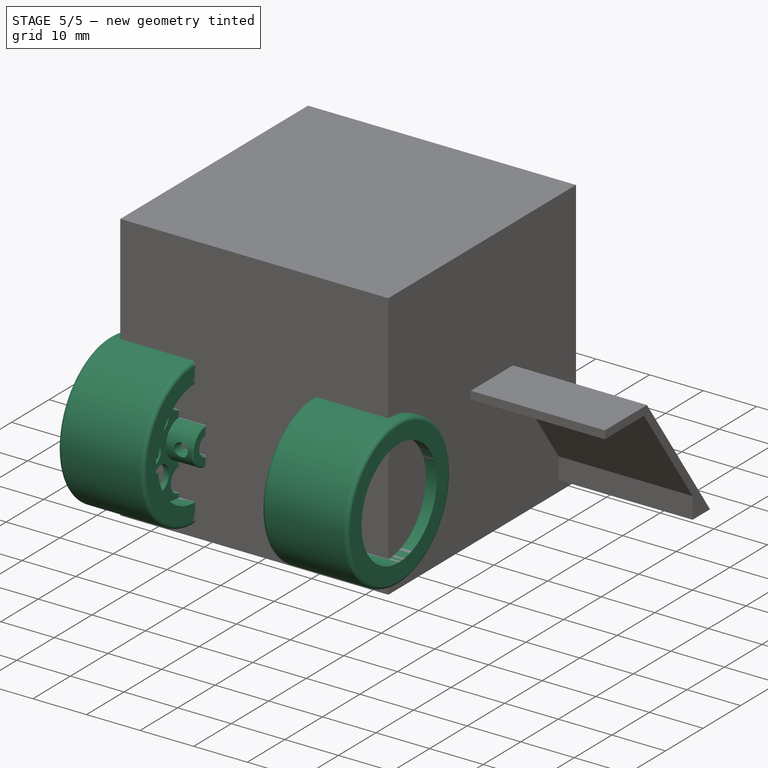
[diagram: stage 5 of 5 — iso view after this stage's code; geometry added in this stage tinted green]
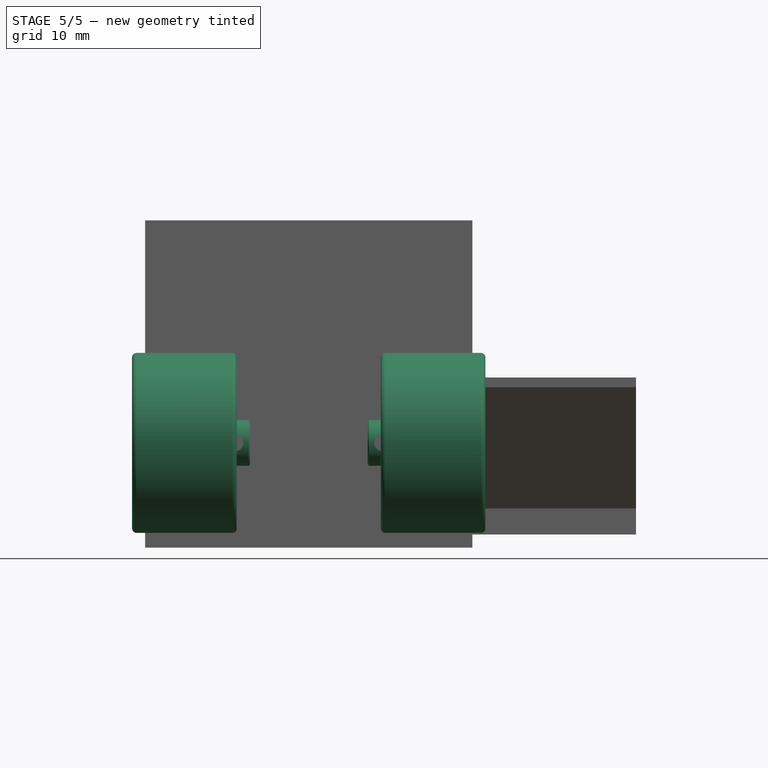
[diagram: stage 5 of 5 — front view after this stage's code; geometry added in this stage tinted green]
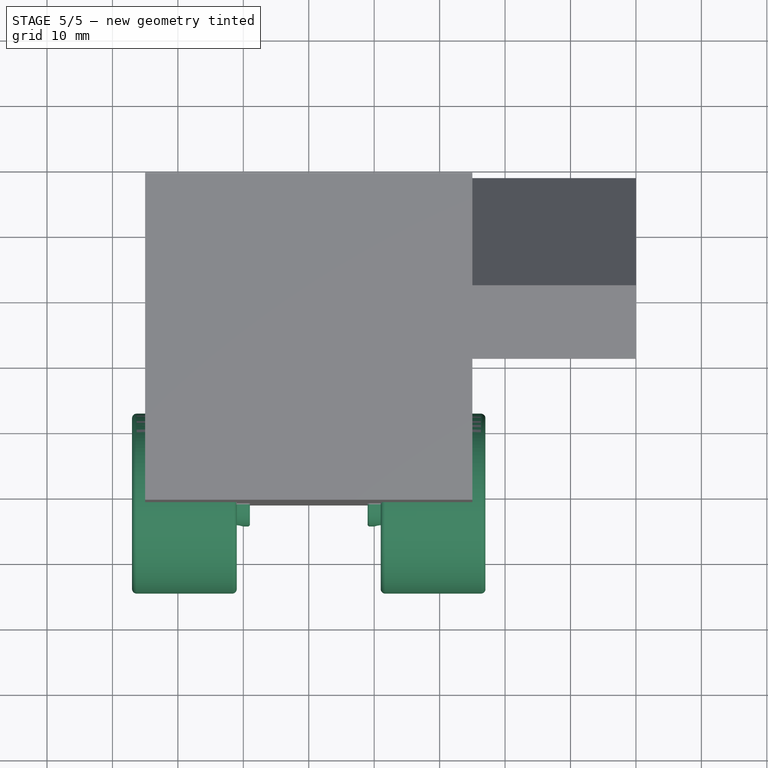
[diagram: stage 5 of 5 — top view after this stage's code; geometry added in this stage tinted green]
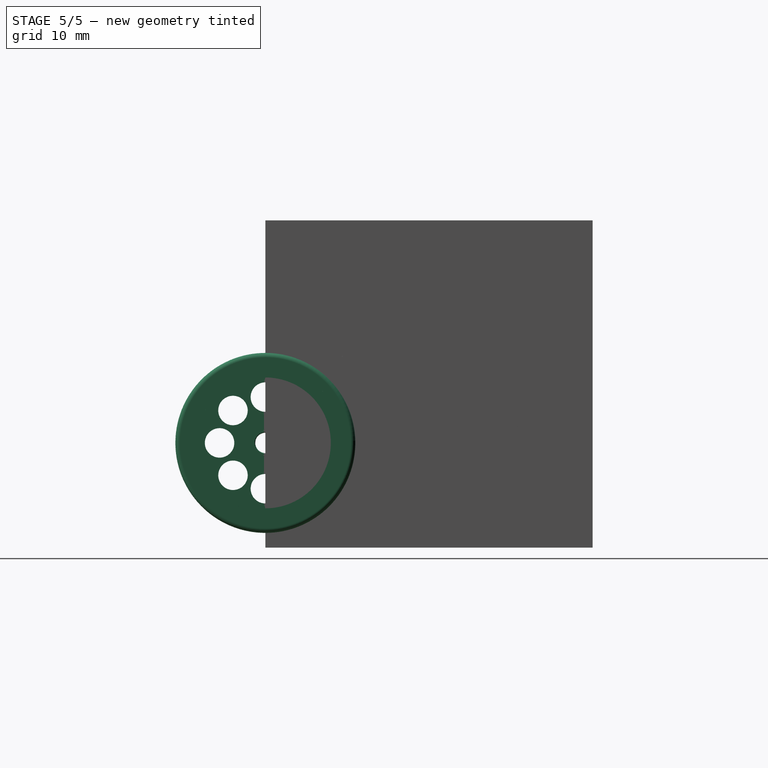
[diagram: stage 5 of 5 — right view after this stage's code; geometry added in this stage tinted green]
FEATURE [Part::Cylinder] Cylinder036
  Angle = 360
  AttacherType = Attacher::AttachEngine3D
  Height = 16
  Radius = 10.5
FEATURE [Part::Cylinder] Cylinder037
  Angle = 360
  AttacherType = Attacher::AttachEngine3D
  Height = 16
  Placement = pos=(0,0,4) rot=(0,0,1;0rad)
  Radius = 10
FEATURE [Part::Cylinder] Cylinder038
  Angle = 360
  AttacherType = Attacher::AttachEngine3D
  Height = 30
  Placement = pos=(0,0,-10) rot=(0,0,1;0rad)
  Radius = 1.55
FEATURE [Part::Cylinder] Cylinder040
  Angle = 360
  AttacherType = Attacher::AttachEngine3D
  Height = 16
  Radius = 13.75
FEATURE [Part::Cylinder] Cylinder041
  Angle = 360
  AttacherType = Attacher::AttachEngine3D
  Height = 20
  Placement = pos=(0,0,-1) rot=(0,0,1;0rad)
  Radius = 10.5
FEATURE [Part::Cut] Cut027
  Base = -> Cylinder040
  Refine = true
  Tool = -> Cylinder041
FEATURE [Part::Fillet] Fillet013  label="tire-src001"
  Base = -> Cut027
  Edges = 2 edges r=0.7: [Edge1,Edge3]
FEATURE [Part::FeaturePython] Clone045  label="Clone of tire-src003"  # Draft clone (typed FeaturePython)
  Objects = -> [Fillet013]
  Placement = pos=(-11,-11,5) rot=(0,-1,0;1.5708rad)
  Scale = (1,1,1)
FEATURE [Part::FeaturePython] Clone043  label="Clone of tire-src002"  # Draft clone (typed FeaturePython)
  Objects = -> [Fillet013]
  Placement = pos=(11,-11,5) rot=(0,1,0;1.5708rad)
  Scale = (1,1,1)
FEATURE [Part::Cylinder] Cylinder042
  Angle = 360
  AttacherType = Attacher::AttachEngine3D
  Height = 16
  Placement = pos=(0,0,-13) rot=(0,0,1;0rad)
  Radius = 10
FEATURE [Part::MultiFuse] Fusion034
  Refine = true
  Shapes = -> [Cylinder037,Cylinder042]
FEATURE [Part::Cut] Cut028
  Base = -> Cylinder036
  Refine = true
  Tool = -> Fusion034
FEATURE [Part::MultiFuse] Fusion035
  Refine = true
  Shapes = -> [Cylinder044,Cylinder043,Cut028]
FEATURE [Part::Cut] Cut002
  Base = -> Fusion035
  Refine = true
  Tool = -> Cylinder045
FEATURE [Part::MultiFuse] Fusion033
  Refine = true
  Shapes = -> [Cylinder038,Array002]
FEATURE [Part::Cut] Cut029
  Base = -> Cut002
  Refine = true
  Tool = -> Fusion033
FEATURE [Part::Chamfer] Chamfer062
  Base = -> Cut029
  Edges = 3 edges: [Edge2 r=0.1,Edge6 r=0.3,Edge20 r=0.2]
FEATURE [Part::FeaturePython] Clone044  label="Clone of Chamfer062"  # Draft clone (typed FeaturePython)
  Objects = -> [Chamfer062]
  Placement = pos=(11,-11,5) rot=(0,1,0;1.5708rad)
  Scale = (1,1,1)
FEATURE [Part::FeaturePython] Clone046  label="Clone of Chamfer063"  # Draft clone (typed FeaturePython)
  Objects = -> [Chamfer062]
  Placement = pos=(-11,-11,5) rot=(0,-1,0;1.5708rad)
  Scale = (1,1,1)
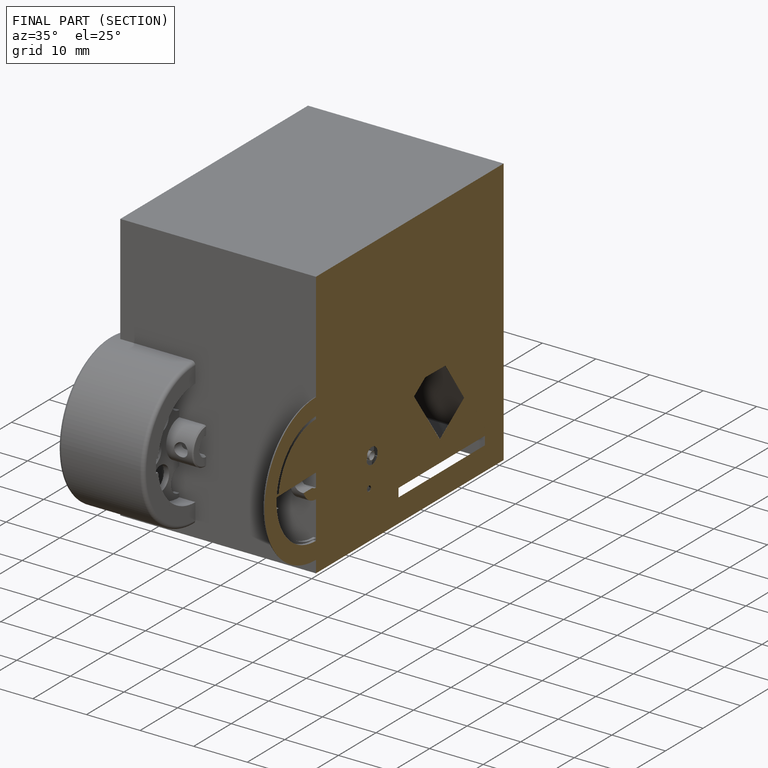
[diagram: finished part — half-section view (interior)]
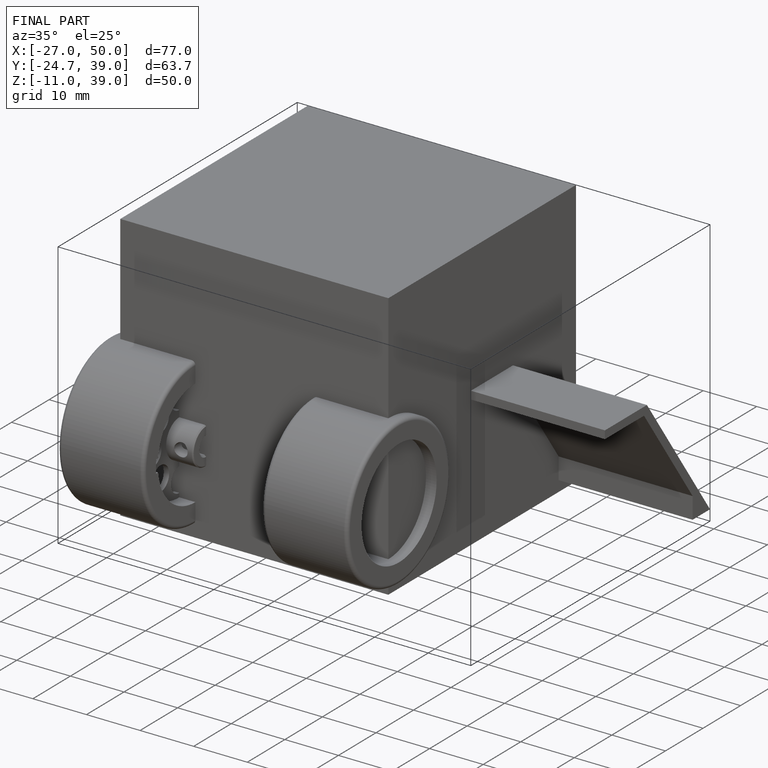
[diagram: finished part — iso view with bounding-box wireframe]
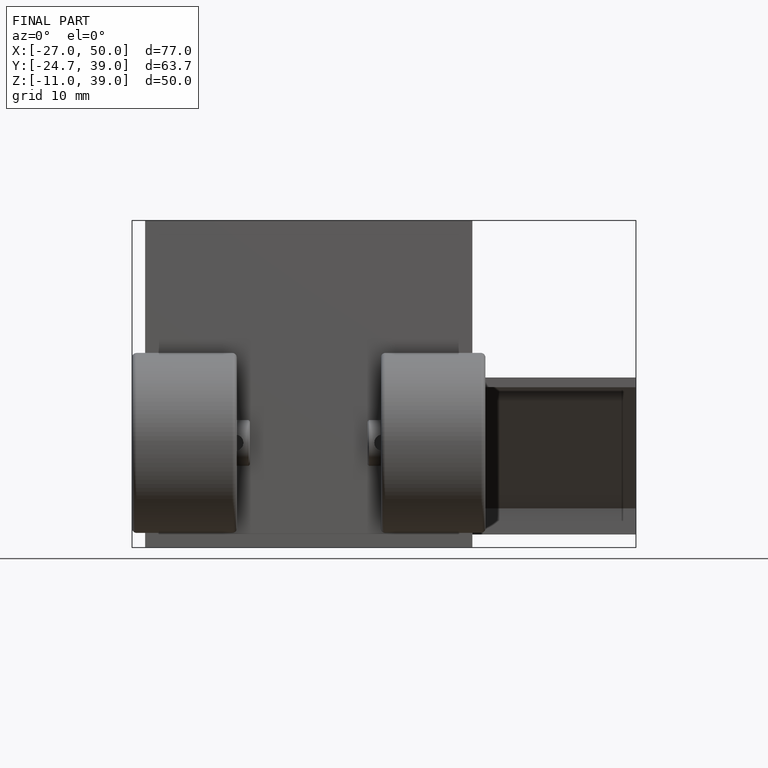
[diagram: finished part — front view with bounding-box wireframe]
